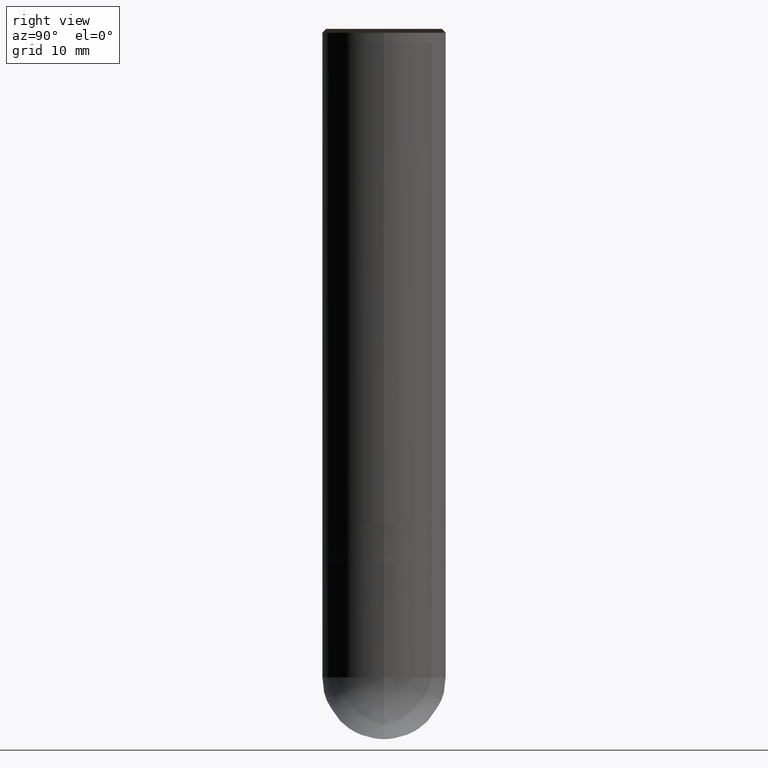
[diagram: clean part render]
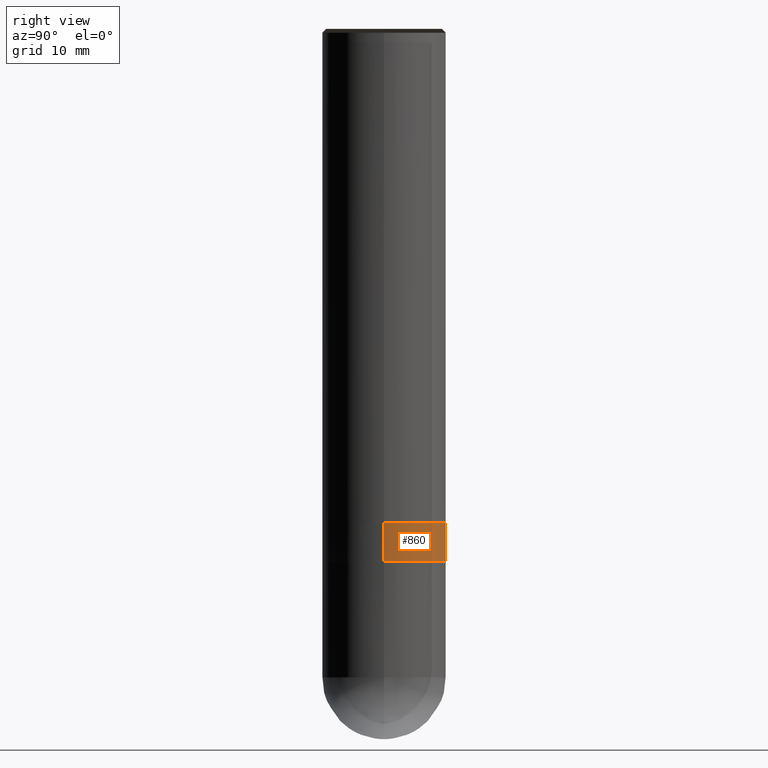
[diagram: same view with one face highlighted and labeled with its STEP entity id]
A machine part, right view. The second image highlights one B-rep face of the part: STEP entity #860.
In plain terms, the highlighted face is a freeform B-spline surface patch.
Its self-contained STEP definition (entity closure, byte-faithful):
#671=CARTESIAN_POINT('',(8.0,0.0,-5.0));
#672=CARTESIAN_POINT('',(8.0,8.0,-5.0));
#673=CARTESIAN_POINT('',(0.0,8.0,-5.0));
#674=CARTESIAN_POINT('',(-8.0,8.0,-5.0));
#675=CARTESIAN_POINT('',(-8.0,0.0,-5.0));
#686=CARTESIAN_POINT('',(8.0,0.0,0.0));
#687=CARTESIAN_POINT('',(8.0,8.0,0.0));
#688=CARTESIAN_POINT('',(0.0,8.0,0.0));
#689=CARTESIAN_POINT('',(-8.0,8.0,0.0));
#690=CARTESIAN_POINT('',(-8.0,0.0,0.0));
#841=(
BOUNDED_SURFACE()
B_SPLINE_SURFACE(1,2,(
(#671,#672,#673,#674,#675),
(#686,#687,#688,#689,#690)
), .UNSPECIFIED.,.F.,.F.,.F.)
B_SPLINE_SURFACE_WITH_KNOTS((2,2),(3,2,3),(
0.0,1.0),(
0.0,0.5,1.0), .UNSPECIFIED.)
GEOMETRIC_REPRESENTATION_ITEM()
RATIONAL_B_SPLINE_SURFACE(((1.0,0.707106781187,1.0,0.707106781187,1.0),
(1.0,0.707106781187,1.0,0.707106781187,1.0)
))
REPRESENTATION_ITEM('')
SURFACE()
);
#842=(
BOUNDED_CURVE()
B_SPLINE_CURVE(2,(#675,#674,#673,#672,#671),.UNSPECIFIED.,.F.,.F.)
B_SPLINE_CURVE_WITH_KNOTS((3,2,3),
(0.0,0.5,1.0),.UNSPECIFIED.)
CURVE()
GEOMETRIC_REPRESENTATION_ITEM()
RATIONAL_B_SPLINE_CURVE((1.0,0.707106781187,1.0,0.707106781187,1.0))
REPRESENTATION_ITEM('')
);
#843=(
BOUNDED_CURVE()
B_SPLINE_CURVE(1,(#671,#686),.UNSPECIFIED.,.F.,.F.)
B_SPLINE_CURVE_WITH_KNOTS((2,2),
(0.0,1.0),.UNSPECIFIED.)
CURVE()
GEOMETRIC_REPRESENTATION_ITEM()
RATIONAL_B_SPLINE_CURVE((1.0,1.0))
REPRESENTATION_ITEM('')
);
#844=(
BOUNDED_CURVE()
B_SPLINE_CURVE(2,(#686,#687,#688,#689,#690),.UNSPECIFIED.,.F.,.F.)
B_SPLINE_CURVE_WITH_KNOTS((3,2,3),
(0.0,0.5,1.0),.UNSPECIFIED.)
CURVE()
GEOMETRIC_REPRESENTATION_ITEM()
RATIONAL_B_SPLINE_CURVE((1.0,0.707106781187,1.0,0.707106781187,1.0))
REPRESENTATION_ITEM('')
);
#845=(
BOUNDED_CURVE()
B_SPLINE_CURVE(1,(#690,#675),.UNSPECIFIED.,.F.,.F.)
B_SPLINE_CURVE_WITH_KNOTS((2,2),
(0.0,1.0),.UNSPECIFIED.)
CURVE()
GEOMETRIC_REPRESENTATION_ITEM()
RATIONAL_B_SPLINE_CURVE((1.0,1.0))
REPRESENTATION_ITEM('')
);
#846=VERTEX_POINT('',#671);
#847=VERTEX_POINT('',#675);
#848=VERTEX_POINT('',#686);
#849=VERTEX_POINT('',#690);
#850=EDGE_CURVE('',#847,#846,#842,.T.);
#851=EDGE_CURVE('',#846,#848,#843,.T.);
#852=EDGE_CURVE('',#848,#849,#844,.T.);
#853=EDGE_CURVE('',#849,#847,#845,.T.);
#854=ORIENTED_EDGE('',*,*,#850,.T.);
#855=ORIENTED_EDGE('',*,*,#851,.T.);
#856=ORIENTED_EDGE('',*,*,#852,.T.);
#857=ORIENTED_EDGE('',*,*,#853,.T.);
#858=EDGE_LOOP('',(#854,#855,#856,#857));
#859=FACE_OUTER_BOUND('',#858,.T.);
#860=ADVANCED_FACE('',(#859),#841,.T.);